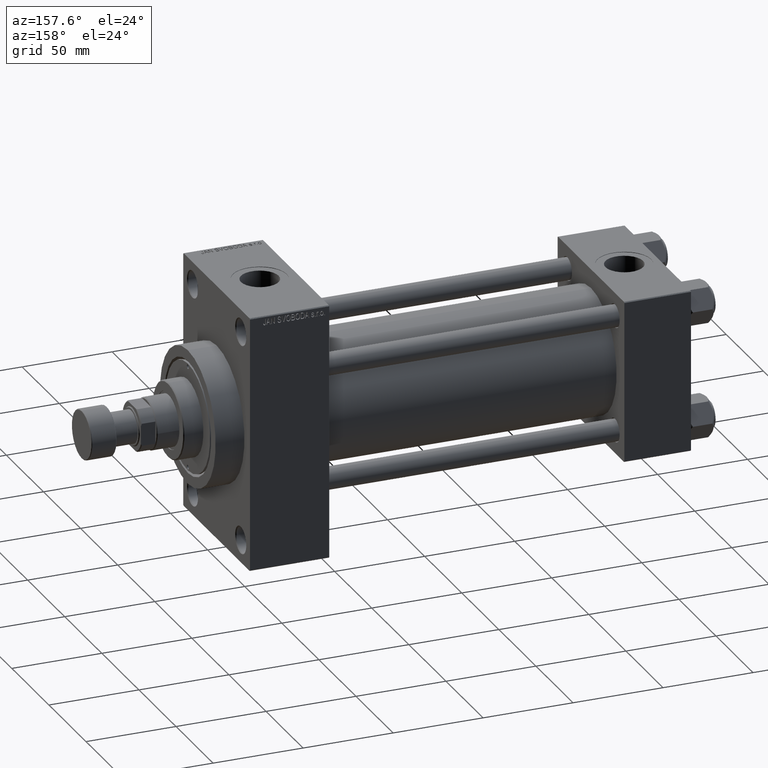
[diagram: clean part render]
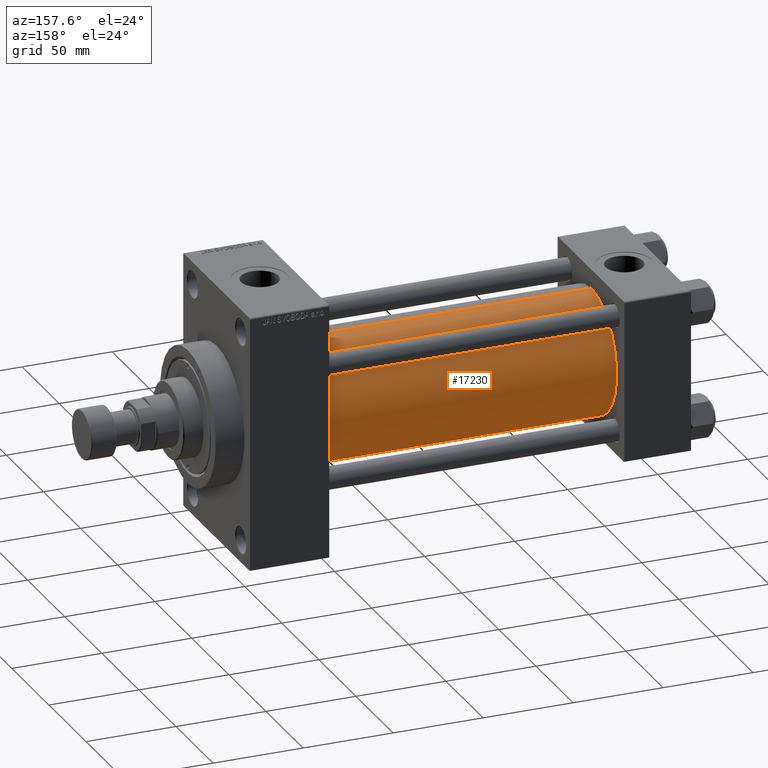
[diagram: same view with one face highlighted and labeled with its STEP entity id]
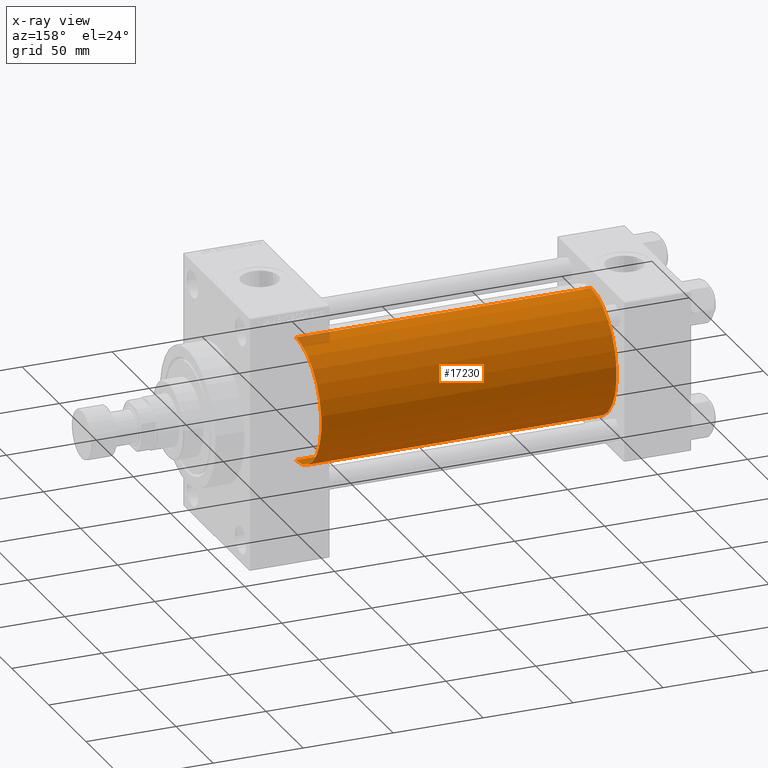
[diagram: x-ray of the same camera — body ghosted, the highlighted face saturated]
A machine part, auxiliary view. The second image highlights one B-rep face of the part: STEP entity #17230.
The next image is the same camera in x-ray: the body ghosted, the highlighted face saturated — about 1% of this face is hidden behind the body in this view.
In plain terms, the highlighted cylindrical surface (partial cylindrical patch) has radius 34.5 mm, axis along (-1, -0, -0).
Its self-contained STEP definition (entity closure, byte-faithful):
#2739 = LINE ( 'NONE', #21151, #47556 ) ;
#2840 = CARTESIAN_POINT ( 'NONE',  ( 201.0000000000000000, -2.602085213965210642E-15, 34.50000000000000000 ) ) ;
#3073 = DIRECTION ( 'NONE',  ( 0.000000000000000000, 0.000000000000000000, 1.000000000000000000 ) ) ;
#3341 = CARTESIAN_POINT ( 'NONE',  ( 37.00000000000000711, -2.602085213965210642E-15, 0.000000000000000000 ) ) ;
#5517 = CIRCLE ( 'NONE', #7080, 34.50000000000000000 ) ;
#6962 = DIRECTION ( 'NONE',  ( -1.000000000000000000, -0.000000000000000000, -0.000000000000000000 ) ) ;
#7080 = AXIS2_PLACEMENT_3D ( 'NONE', #3341, #43784, #10621 ) ;
#7707 = CARTESIAN_POINT ( 'NONE',  ( 201.0000000000000000, -2.602085213965210642E-15, 0.000000000000000000 ) ) ;
#10358 = CYLINDRICAL_SURFACE ( 'NONE', #44512, 34.50000000000000000 ) ;
#10621 = DIRECTION ( 'NONE',  ( 0.000000000000000000, 0.000000000000000000, 1.000000000000000000 ) ) ;
#11825 = DIRECTION ( 'NONE',  ( 1.000000000000000000, 0.000000000000000000, 0.000000000000000000 ) ) ;
#12074 = LINE ( 'NONE', #26842, #26386 ) ;
#12487 = EDGE_CURVE ( 'NONE', #15677, #35491, #12074, .T. ) ;
#15677 = VERTEX_POINT ( 'NONE', #33227 ) ;
#17230 = ADVANCED_FACE ( 'NONE', ( #46912 ), #10358, .T. ) ;
#19382 = EDGE_CURVE ( 'NONE', #42591, #36498, #2739, .T. ) ;
#20233 = CIRCLE ( 'NONE', #24103, 34.50000000000000000 ) ;
#21076 = EDGE_CURVE ( 'NONE', #35491, #36498, #5517, .T. ) ;
#21151 = CARTESIAN_POINT ( 'NONE',  ( 201.0000000000000000, -2.602085213965210642E-15, 34.50000000000000000 ) ) ;
#22472 = DIRECTION ( 'NONE',  ( 0.000000000000000000, 0.000000000000000000, -1.000000000000000000 ) ) ;
#24103 = AXIS2_PLACEMENT_3D ( 'NONE', #7707, #11825, #22472 ) ;
#25214 = ORIENTED_EDGE ( 'NONE', *, *, #44880, .F. ) ;
#26386 = VECTOR ( 'NONE', #41590, 1000.000000000000000 ) ;
#26842 = CARTESIAN_POINT ( 'NONE',  ( 201.0000000000000000, 1.622946243093158675E-15, -34.50000000000000000 ) ) ;
#32270 = CARTESIAN_POINT ( 'NONE',  ( 37.00000000000000711, -2.602085213965210642E-15, 34.50000000000000000 ) ) ;
#33227 = CARTESIAN_POINT ( 'NONE',  ( 201.0000000000000000, 1.622946243093158675E-15, -34.50000000000000000 ) ) ;
#35491 = VERTEX_POINT ( 'NONE', #44559 ) ;
#35942 = DIRECTION ( 'NONE',  ( -1.000000000000000000, -0.000000000000000000, -0.000000000000000000 ) ) ;
#36284 = EDGE_LOOP ( 'NONE', ( #25214, #45986, #38284, #40679 ) ) ;
#36498 = VERTEX_POINT ( 'NONE', #32270 ) ;
#38284 = ORIENTED_EDGE ( 'NONE', *, *, #21076, .T. ) ;
#40679 = ORIENTED_EDGE ( 'NONE', *, *, #19382, .F. ) ;
#41590 = DIRECTION ( 'NONE',  ( -1.000000000000000000, -0.000000000000000000, -0.000000000000000000 ) ) ;
#42591 = VERTEX_POINT ( 'NONE', #2840 ) ;
#43784 = DIRECTION ( 'NONE',  ( 1.000000000000000000, -0.000000000000000000, 0.000000000000000000 ) ) ;
#43991 = CARTESIAN_POINT ( 'NONE',  ( 201.0000000000000000, -2.602085213965210642E-15, 0.000000000000000000 ) ) ;
#44512 = AXIS2_PLACEMENT_3D ( 'NONE', #43991, #6962, #3073 ) ;
#44559 = CARTESIAN_POINT ( 'NONE',  ( 37.00000000000000711, 1.622946243093158675E-15, -34.50000000000000000 ) ) ;
#44880 = EDGE_CURVE ( 'NONE', #15677, #42591, #20233, .T. ) ;
#45986 = ORIENTED_EDGE ( 'NONE', *, *, #12487, .T. ) ;
#46912 = FACE_OUTER_BOUND ( 'NONE', #36284, .T. ) ;
#47556 = VECTOR ( 'NONE', #35942, 1000.000000000000000 ) ;